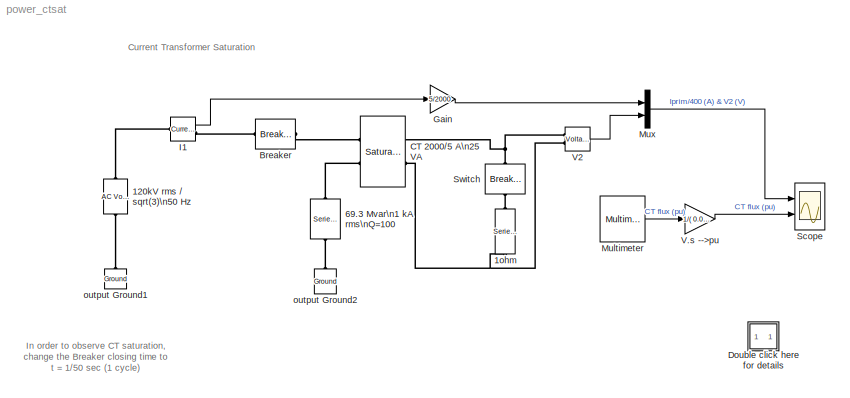
MODEL power_ctsat
KIND model
BLOCK [Reference] 120kV rms // sqrt(3)\n50 Hz  REF=powerlib/Electrical\nSources/AC Voltage Source
  Amplitude = 120e3/sqrt(3)*sqrt(2)
  AttributesFormatString = \\n
  Description = source block
  Frequency = 50
  Measurements = None
  Phase = 0
  Ports = [0, 0, 0, 0, 0, 1, 1]
  SampleTime = 0
  ShowPortLabels = on
  SourceBlock = powerlib/Electrical\nSources/AC Voltage Source
  SourceType = AC Voltage Source
BLOCK [Reference] 1ohm  REF=powerlib/Elements/Series RLC Branch
  AttributesFormatString = \\n
  Capacitance = inf
  Inductance = 0
  LConnTagsString = __new0
  LeftPortType = p1
  Measurements = None
  PhysicalDomain = powersysdomain
  Ports = [0, 0, 0, 0, 0, 1, 1]
  RConnTagsString = __new0
  Resistance = 1
  RightPortType = p1
  SourceBlock = powerlib/Elements/Series RLC Branch
  SourceType = Series RLC Branch
  SubClassName = unknown
BLOCK [Reference] 69.3 Mvar\n1 kA rms\nQ=100  REF=powerlib/Elements/Series RLC Branch
  AttributesFormatString = \\n
  Capacitance = inf
  Inductance = 69.3e3/1e3/(2*pi*50)
  LConnTagsString = __new0
  LeftPortType = p1
  Measurements = None
  PhysicalDomain = powersysdomain
  Ports = [0, 0, 0, 0, 0, 1, 1]
  RConnTagsString = __new0
  Resistance = 69.3e3/1e3/100
  RightPortType = p1
  SourceBlock = powerlib/Elements/Series RLC Branch
  SourceType = Series RLC Branch
  SubClassName = unknown
BLOCK [Reference] Breaker  REF=powerlib/Elements/Breaker
  AttributesFormatString = \\n
  BreakerResistance = 0.01
  External = off
  InitialState = 0
  Measurements = None
  Ports = [0, 0, 0, 0, 0, 1, 1]
  ShowPortLabels = on
  SnubberCapacitance = inf
  SnubberResistance = 1e6
  SourceBlock = powerlib/Elements/Breaker
  SourceType = Breaker
  SwitchingTimes = [ 1.25/50]
BLOCK [Reference] CT 2000//5 A\n25 VA  REF=powerlib/Elements/Saturable Transformer
  AttributesFormatString = \\n
  CoreLoss = [100]
  DataFile = 'hysteresis'
  Hysteresis = off
  InitialFlux = 0
  Measurements = Flux and magnetization current ( Imag )
  NominalPower = [25 50]
  Ports = [0, 0, 0, 0, 0, 2, 2]
  Saturation = [0 0 ; 0.01 10 ; 1 10.5]
  ShowPortLabels = on
  SourceBlock = powerlib/Elements/Saturable Transformer
  SourceType = Saturable Transformer
  ThreeWindings = off
  TransfoNumber = 1
  Winding1 = [5*5/2000 0.001 0.04]
  Winding2 = [5 0.001 0.04 ]
  Winding3 = [5 0.001 0.04 ]
BLOCK [SubSystem] Double click here for details
  MaskDisplay = disp('?')
  MaskIconFrame = on
  MaskIconOpaque = on
  MaskIconRotate = none
  MaskIconUnits = autoscale
  MinAlgLoopOccurrences = off
  Ports = []
  RTWSystemCode = Auto
  TreatAsAtomicUnit = off
BLOCK [Gain] Gain
  Gain = 5/2000
BLOCK [Reference] I1  REF=powerlib/Measurements/Current Measurement
  AttributesFormatString = \\n
  OutputType = Magnitude
  PSBequivalent = 0
  PhasorSimulation = off
  Ports = [0, 1, 0, 0, 0, 1, 1]
  ShowPortLabels = on
  SourceBlock = powerlib/Measurements/Current Measurement
  SourceType = Current Measurement
  Tag = PoWeRsYsTeMmEaSuReMeNt
BLOCK [Reference] Multimeter  REF=powerlib/Measurements/Multimeter
  AttributesFormatString = \\n
  AxesSetting = [0,0.1,-100,100]
  Display = 0
  Gain = 1
  L = 2
  OutputType = Magnitude
  PSBOutputType = 1
  PSBequivalent = 0
  PhasorSimulation = off
  Ports = [0, 1]
  SavedBlockNames = {}
  ShowPortLabels = on
  SourceBlock = powerlib/Measurements/Multimeter
  SourceType = MultimeterPSB
  Tag = PoWeRsYsTeMmEaSuReMeNt
  sel = 2
  yselected = {'Flux: CT 2000//5 A 25 VA'};
BLOCK [Mux] Mux
  DisplayOption = bar
  Inputs = 2
  Ports = [2, 1]
BLOCK [Scope] Scope
  DataFormat = StructureWithTime
  NumInputPorts = 2
  Ports = [2]
  TimeRange = 0.2
  YMax = 4~1
  YMin = -4~-0.4
BLOCK [Reference] Switch  REF=powerlib/Elements/Breaker
  AttributesFormatString = \\n
  BreakerResistance = 0.001
  External = off
  InitialState = 1
  Measurements = None
  Ports = [0, 0, 0, 0, 0, 1, 1]
  ShowPortLabels = on
  SnubberCapacitance = inf
  SnubberResistance = 1e6
  SourceBlock = powerlib/Elements/Breaker
  SourceType = Breaker
  SwitchingTimes = [  99 ]
BLOCK [Gain] V.s -->pu
  Gain = 1/( 0.0125*sqrt(2)/(2*pi*50))
BLOCK [Reference] V2  REF=powerlib/Measurements/Voltage Measurement
  AttributesFormatString = \\n
  OutputType = Magnitude
  PSBequivalent = 0
  PhasorSimulation = off
  Ports = [0, 1, 0, 0, 0, 2]
  ShowPortLabels = on
  SourceBlock = powerlib/Measurements/Voltage Measurement
  SourceType = Voltage Measurement
  Tag = PoWeRsYsTeMmEaSuReMeNt
BLOCK [Reference] output Ground1  REF=powerlib/Elements/Ground
  AttributesFormatString = \\n
  LConnTagsString = a
  LeftPortType = p1
  PhysicalDomain = powersysdomain
  Ports = [0, 0, 0, 0, 0, 1]
  RightPortType = p1
  SourceBlock = powerlib/Elements/Ground
  SourceType = Ground
  SubClassName = unknown
BLOCK [Reference] output Ground2  REF=powerlib/Elements/Ground
  AttributesFormatString = \\n
  LConnTagsString = a
  LeftPortType = p1
  PhysicalDomain = powersysdomain
  Ports = [0, 0, 0, 0, 0, 1]
  RightPortType = p1
  SourceBlock = powerlib/Elements/Ground
  SourceType = Ground
  SubClassName = unknown
ANNOTATION (root): Current Transformer Saturation
ANNOTATION (root): In order to observe CT saturation,\nchange the Breaker closing time to \nt = 1/50 sec (1 cycle)
ANNOTATION Double click here for details: 1. Normal operation
ANNOTATION Double click here for details: 2. CT saturation due to current asymmetry
ANNOTATION Double click here for details: 3. Overvoltage due to CT secondary opening
ANNOTATION Double click here for details: A current transformer (CT) is used to measure current in a shunt inductor connected on a 120 kV network.\nThe CT is rated 2000 A / 5 A, 5 VA. The primary winding which consists of a single turn passing through the\nCT toroidal core is connected in series with the shunt inductor rated 69.3 Mvar, 69.3 kV (120kV/sqrt(3)), 1 kA rms. \nThe secondary winding consisting of 1*2000/5 = 400 turns is short c...<+945ch>
ANNOTATION Double click here for details: Circuit Description
ANNOTATION Double click here for details: Demonstration
ANNOTATION Double click here for details: G. Sybille (Hydro-Quebec)
ANNOTATION Double click here for details: In this test , the breaker is closed at a peak of source voltage (t = 1.25 cycle). This switching produces no current asymmetry.\nStart the simulation and observe the CT primary current and secondary voltage (first tace of Scope block).\nAs expected the the CT current and voltage are sinusoidal and the measurement error due to CT resistance and leakage \nreactances is not significant. The flux con...<+72ch>
ANNOTATION Double click here for details: Now, change the breaker closing time in order to close at a voltage zero crossing. Use t = 1/50 s. \nThis switching instant will now produce full current asymmetry in the shunt reactor. Restart the simulation.\nObserve that for the first 3 cycles, the flux stays lower than the saturation knee point (10 pu). The CT voltage output V2 \nthen follows the primary current. However, after 3 cycles, the f...<+125ch>
ANNOTATION Double click here for details: Reprogram the primary breaker closing time at t = 1.25/50 s (no flux asymmetry) and change the secondary switch \nopening time to t = 0.1 s. Restart the simulation and observe the large overvoltage produced when the CT secondary is opened.\nThe flux has a square waveshape chopped at +10 and -10 pu. Large dphi/dt produced at flux inversion generates high \nvoltage spikes (250 V).
ANNOTATION Double click here for details: This demonstration illustrates measurement distortion due to saturation of a current transformer (CT)
LINE Gain:1 -> Mux:1
LINE I1:1 -> Gain:1
LINE Multimeter:1 -> V.s -->pu:1
LINE Mux:1 -> Scope:1
LINE V.s -->pu:1 -> Scope:2
LINE V2:1 -> Mux:2
PLINE 120kV rms // sqrt(3)\n50 Hz:LConn1 -- output Ground1:LConn1
PLINE 120kV rms // sqrt(3)\n50 Hz:RConn1 -- I1:LConn1
PLINE 1ohm:LConn1 -- Switch:RConn1
PNET net1: 1ohm:RConn1 -- CT 2000//5 A\n25 VA:RConn2 -- V2:LConn2
PLINE 69.3 Mvar\n1 kA rms\nQ=100:LConn1 -- output Ground2:LConn1
PLINE 69.3 Mvar\n1 kA rms\nQ=100:RConn1 -- CT 2000//5 A\n25 VA:LConn2
PLINE Breaker:LConn1 -- I1:RConn1
PLINE Breaker:RConn1 -- CT 2000//5 A\n25 VA:LConn1
PNET net2: CT 2000//5 A\n25 VA:RConn1 -- Switch:LConn1 -- V2:LConn1
note: PNET lines group multi-terminal physical nets as a canonical sorted terminal list (undirected conserving connections); 2-terminal nets keep the pairwise PLINE form
